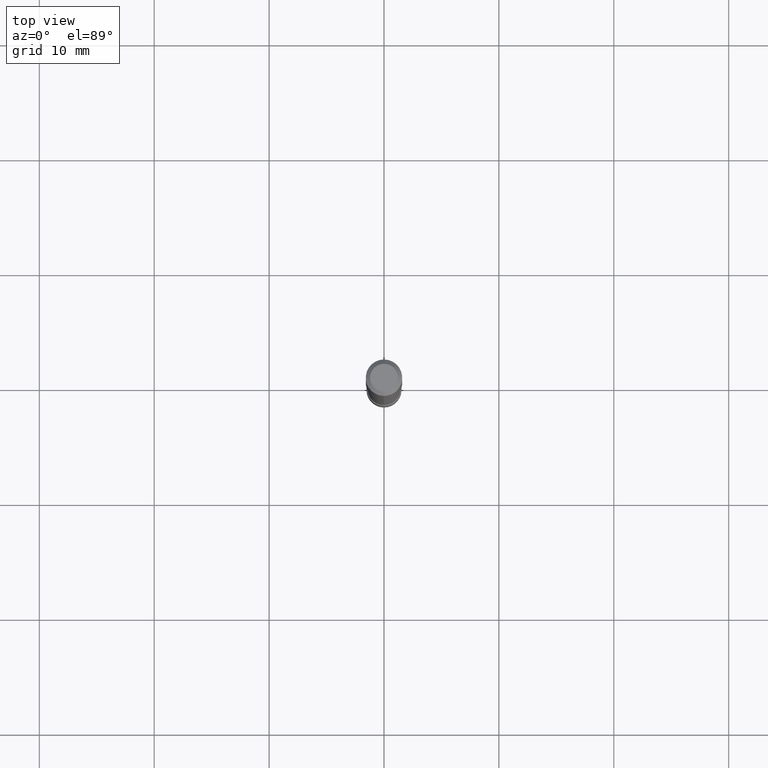
[diagram: clean part render]
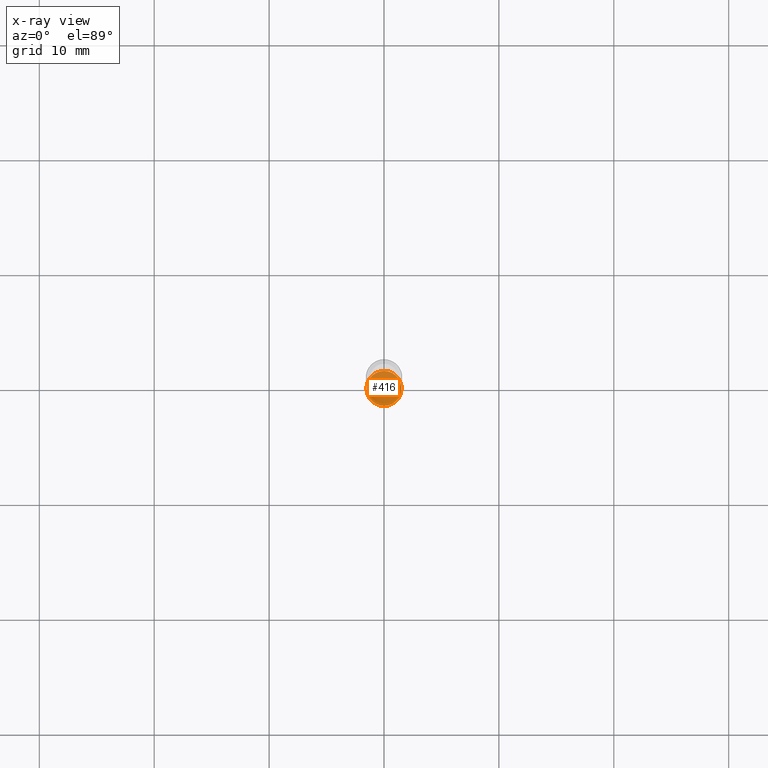
[diagram: x-ray — body ghosted, one internal face saturated and labeled with its STEP entity id]
A machine part, top view, then the same camera in x-ray: the body is ghosted and one INTERNAL B-rep face — a face not visible from any outside direction — is saturated and labeled: STEP entity #416.
In plain terms, the highlighted planar face has unit normal (-0, 0, 1).
Its self-contained STEP definition (entity closure, byte-faithful):
#13 = PLANE ( 'NONE',  #218 ) ;
#23 = EDGE_CURVE ( 'NONE', #363, #286, #234, .T. ) ;
#25 = CARTESIAN_POINT ( 'NONE',  ( 5.233484275090707986E-29, -7.471510820069086511E-15, -2.140000000000000124 ) ) ;
#38 = CARTESIAN_POINT ( 'NONE',  ( 4.263256414561126536E-16, 0.05999999999999256622, -2.140000000000000568 ) ) ;
#42 = CARTESIAN_POINT ( 'NONE',  ( -4.189777606611237800E-16, -0.06000000000000750566, -2.139999999999999680 ) ) ;
#51 = AXIS2_PLACEMENT_3D ( 'NONE', #25, #201, #368 ) ;
#63 = ORIENTED_EDGE ( 'NONE', *, *, #23, .F. ) ;
#101 = DIRECTION ( 'NONE',  ( -2.445553399575096747E-29, 3.491360196293965350E-15, 1.000000000000000000 ) ) ;
#181 = AXIS2_PLACEMENT_3D ( 'NONE', #358, #526, #276 ) ;
#201 = DIRECTION ( 'NONE',  ( -2.445553399575097308E-29, 3.491360196293965350E-15, 1.000000000000000000 ) ) ;
#218 = AXIS2_PLACEMENT_3D ( 'NONE', #538, #101, #355 ) ;
#234 = CIRCLE ( 'NONE', #51, 0.05999999999999999778 ) ;
#276 = DIRECTION ( 'NONE',  ( -6.982962677686265922E-15, -1.000000000000000000, 4.553079989440439092E-15 ) ) ;
#286 = VERTEX_POINT ( 'NONE', #38 ) ;
#308 = FACE_OUTER_BOUND ( 'NONE', #566, .T. ) ;
#355 = DIRECTION ( 'NONE',  ( -6.982962677686265922E-15, -1.000000000000000000, 3.491360196293965350E-15 ) ) ;
#358 = CARTESIAN_POINT ( 'NONE',  ( 5.233484275090707986E-29, -7.471510820069086511E-15, -2.140000000000000124 ) ) ;
#363 = VERTEX_POINT ( 'NONE', #42 ) ;
#368 = DIRECTION ( 'NONE',  ( -6.982962677686265922E-15, -1.000000000000000000, 4.553079989440439092E-15 ) ) ;
#416 = ADVANCED_FACE ( 'NONE', ( #308 ), #13, .F. ) ;
#431 = ORIENTED_EDGE ( 'NONE', *, *, #512, .F. ) ;
#512 = EDGE_CURVE ( 'NONE', #286, #363, #546, .T. ) ;
#526 = DIRECTION ( 'NONE',  ( -2.445553399575097308E-29, 3.491360196293965350E-15, 1.000000000000000000 ) ) ;
#538 = CARTESIAN_POINT ( 'NONE',  ( 4.189777606612283041E-16, 0.05999999999999253153, -2.140000000000000568 ) ) ;
#546 = CIRCLE ( 'NONE', #181, 0.05999999999999999778 ) ;
#566 = EDGE_LOOP ( 'NONE', ( #63, #431 ) ) ;